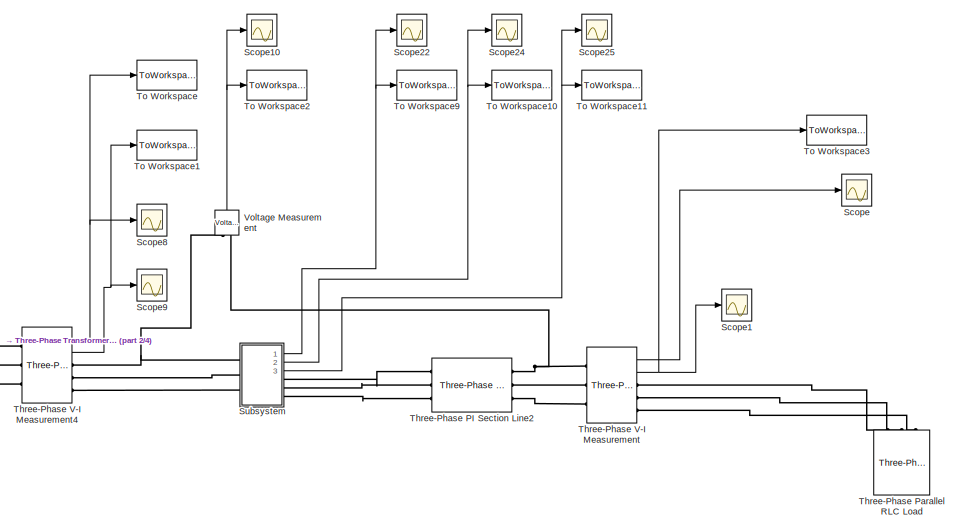
[diagram: root canvas - part 1/4, top right region]
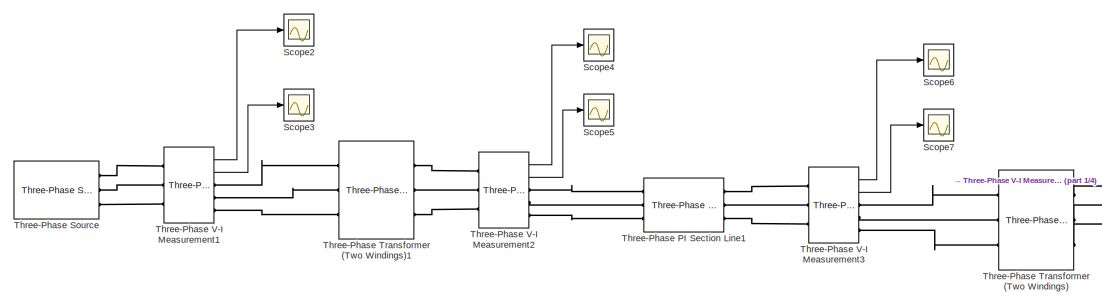
[diagram: root canvas - part 2/4, top left region]
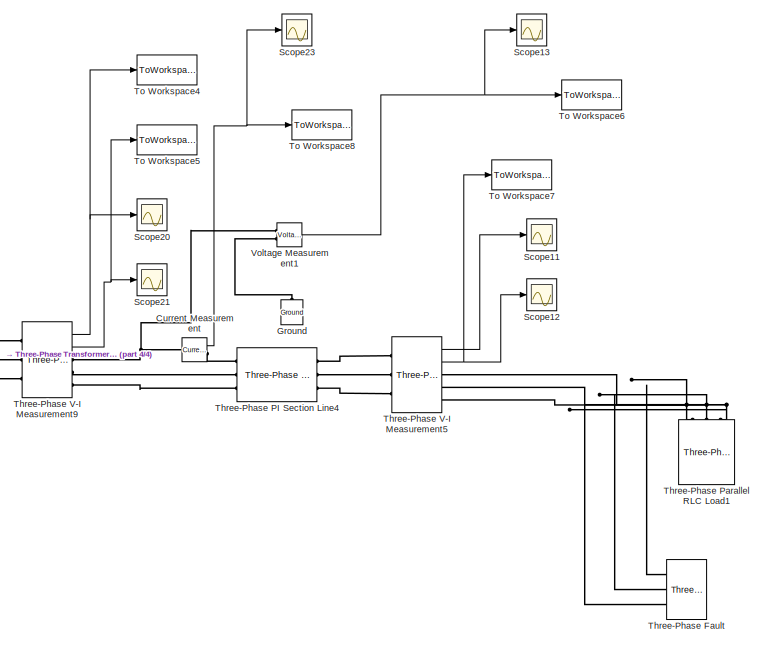
[diagram: root canvas - part 3/4, bottom right region]
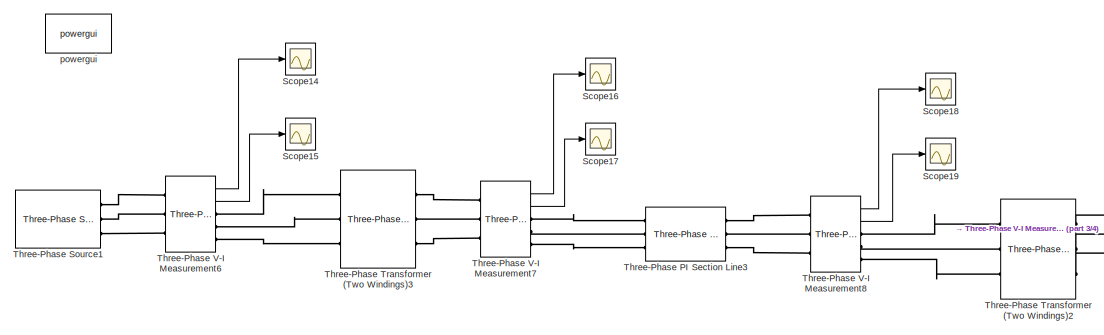
[diagram: root canvas - part 4/4, bottom left region]
MODEL slx_69a28de0aadc
KIND model
BLOCK [Reference] Current Measurement  REF=powerlib/Measurements/Current Measurement
  OutputType = Complex
  PSBequivalent = 0
  PhasorSimulation = off
  Ports = [0, 1, 0, 0, 0, 1, 1]
  SourceBlock = powerlib/Measurements/Current Measurement
  SourceType = Current Measurement
  UserDataPersistent = on
BLOCK [Reference] Ground  REF=powerlib/Elements/Ground
  LConnTagsString = a
  Ports = [0, 0, 0, 0, 0, 1]
  SourceBlock = powerlib/Elements/Ground
  SourceType = Ground
BLOCK [Scope] Scope
  Floating = off
  LimitDataPoints = off
  NumInputPorts = 1
  Ports = [1]
  ShowLegends = off
  YMax = 20000
  YMin = -20000
  ZoomMode = yonly
BLOCK [Scope] Scope1
  Floating = off
  LimitDataPoints = off
  NumInputPorts = 1
  Ports = [1]
  SaveName = ScopeData1
  ShowLegends = off
  YMax = 3500
  YMin = -3000
  ZoomMode = yonly
BLOCK [Scope] Scope10
  Floating = off
  LimitDataPoints = off
  NumInputPorts = 1
  Ports = [1]
  SaveName = ScopeData10
  ShowLegends = off
  YMax = 20000
  YMin = -20000
BLOCK [Scope] Scope11
  Floating = off
  LimitDataPoints = off
  NumInputPorts = 1
  Ports = [1]
  SaveName = ScopeData11
  ShowLegends = off
  YMax = 20000
  YMin = -20000
  ZoomMode = yonly
BLOCK [Scope] Scope12
  Floating = off
  LimitDataPoints = off
  NumInputPorts = 1
  Ports = [1]
  SaveName = ScopeData12
  ShowLegends = off
  YMax = 3500
  YMin = -3000
  ZoomMode = yonly
BLOCK [Scope] Scope13
  Floating = off
  LimitDataPoints = off
  NumInputPorts = 1
  Ports = [1]
  SaveName = ScopeData13
  ShowLegends = off
  YMax = 20000
  YMin = -20000
  ZoomMode = yonly
BLOCK [Scope] Scope14
  Floating = off
  LimitDataPoints = off
  NumInputPorts = 1
  Ports = [1]
  SaveName = ScopeData14
  ShowLegends = off
  YMax = 175000
  YMin = -175000
BLOCK [Scope] Scope15
  Floating = off
  LimitDataPoints = off
  NumInputPorts = 1
  Ports = [1]
  SaveName = ScopeData15
  ShowLegends = off
  YMax = 700
  YMin = -700
  ZoomMode = xonly
BLOCK [Scope] Scope16
  Floating = off
  LimitDataPoints = off
  NumInputPorts = 1
  Ports = [1]
  SaveName = ScopeData16
  ShowLegends = off
  YMax = 20000
  YMin = -20000
BLOCK [Scope] Scope17
  Floating = off
  LimitDataPoints = off
  NumInputPorts = 1
  Ports = [1]
  SaveName = ScopeData17
  ShowLegends = off
  YMax = 20000
  YMin = -20000
  ZoomMode = yonly
BLOCK [Scope] Scope18
  Floating = off
  LimitDataPoints = off
  NumInputPorts = 1
  Ports = [1]
  SaveName = ScopeData18
  ShowLegends = off
  YMax = 20000
  YMin = -20000
BLOCK [Scope] Scope19
  Floating = off
  LimitDataPoints = off
  NumInputPorts = 1
  Ports = [1]
  SaveName = ScopeData19
  ShowLegends = off
  YMax = 900
  YMin = -900
  ZoomMode = yonly
BLOCK [Scope] Scope2
  Floating = off
  LimitDataPoints = off
  NumInputPorts = 1
  Ports = [1]
  SaveName = ScopeData2
  ShowLegends = off
  YMax = 175000
  YMin = -175000
BLOCK [Scope] Scope20
  Floating = off
  LimitDataPoints = off
  NumInputPorts = 1
  Ports = [1]
  SaveName = ScopeData20
  ShowLegends = off
  YMax = 20000
  YMin = -20000
BLOCK [Scope] Scope21
  Floating = off
  LimitDataPoints = off
  NumInputPorts = 1
  Ports = [1]
  SaveName = ScopeData21
  ShowLegends = off
  YMax = 20000
  YMin = -20000
BLOCK [Scope] Scope22
  Floating = off
  LimitDataPoints = off
  NumInputPorts = 1
  Ports = [1]
  SaveName = ScopeData22
  ShowLegends = off
  YMax = 20000
  YMin = -20000
BLOCK [Scope] Scope23
  Floating = off
  LimitDataPoints = off
  NumInputPorts = 1
  Ports = [1]
  SaveName = ScopeData23
  ShowLegends = off
  YMax = 20000
  YMin = -20000
  ZoomMode = yonly
BLOCK [Scope] Scope24
  Floating = off
  LimitDataPoints = off
  NumInputPorts = 1
  Ports = [1]
  SaveName = ScopeData24
  ShowLegends = off
  YMax = 20000
  YMin = -20000
BLOCK [Scope] Scope25
  Floating = off
  LimitDataPoints = off
  NumInputPorts = 1
  Ports = [1]
  SaveName = ScopeData25
  ShowLegends = off
  YMax = 20000
  YMin = -20000
BLOCK [Scope] Scope3
  Floating = off
  LimitDataPoints = off
  NumInputPorts = 1
  Ports = [1]
  SaveName = ScopeData3
  ShowLegends = off
  YMax = 700
  YMin = -700
  ZoomMode = xonly
BLOCK [Scope] Scope4
  Floating = off
  LimitDataPoints = off
  NumInputPorts = 1
  Ports = [1]
  SaveName = ScopeData4
  ShowLegends = off
  YMax = 20000
  YMin = -20000
BLOCK [Scope] Scope5
  Floating = off
  LimitDataPoints = off
  NumInputPorts = 1
  Ports = [1]
  SaveName = ScopeData5
  ShowLegends = off
  YMax = 20000
  YMin = -20000
  ZoomMode = yonly
BLOCK [Scope] Scope6
  Floating = off
  LimitDataPoints = off
  NumInputPorts = 1
  Ports = [1]
  SaveName = ScopeData6
  ShowLegends = off
  YMax = 20000
  YMin = -20000
BLOCK [Scope] Scope7
  Floating = off
  LimitDataPoints = off
  NumInputPorts = 1
  Ports = [1]
  SaveName = ScopeData7
  ShowLegends = off
  YMax = 900
  YMin = -900
  ZoomMode = yonly
BLOCK [Scope] Scope8
  Floating = off
  LimitDataPoints = off
  NumInputPorts = 1
  Ports = [1]
  SaveName = ScopeData8
  ShowLegends = off
  YMax = 20000
  YMin = -20000
BLOCK [Scope] Scope9
  Floating = off
  LimitDataPoints = off
  NumInputPorts = 1
  Ports = [1]
  SaveName = ScopeData9
  ShowLegends = off
  YMax = 20000
  YMin = -20000
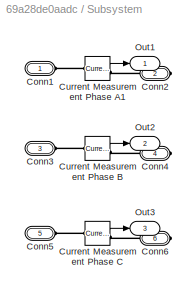
BLOCK [SubSystem] Subsystem
  FunctionWithSeparateData = off
  MaskHideContents = off
  MinAlgLoopOccurrences = off
  Opaque = off
  Ports = [0, 3, 0, 0, 0, 3, 3]
  PropExecContextOutsideSubsystem = off
  RTWSystemCode = Auto
  RequestExecContextInheritance = off
BLOCK [PMIOPort] Subsystem/Conn1
  Port = 1
  Side = Left
BLOCK [PMIOPort] Subsystem/Conn2
  Port = 2
  Side = Right
BLOCK [PMIOPort] Subsystem/Conn3
  Port = 3
  Side = Left
BLOCK [PMIOPort] Subsystem/Conn4
  Port = 4
  Side = Right
BLOCK [PMIOPort] Subsystem/Conn5
  Port = 5
  Side = Left
BLOCK [PMIOPort] Subsystem/Conn6
  Port = 6
  Side = Right
BLOCK [Reference] Subsystem/Current Measurement Phase A1  REF=powerlib/Measurements/Current Measurement
  OutputType = Complex
  PSBequivalent = 0
  PhasorSimulation = off
  Ports = [0, 1, 0, 0, 0, 1, 1]
  SourceBlock = powerlib/Measurements/Current Measurement
  SourceType = Current Measurement
  UserDataPersistent = on
BLOCK [Reference] Subsystem/Current Measurement Phase B  REF=powerlib/Measurements/Current Measurement
  OutputType = Complex
  PSBequivalent = 0
  PhasorSimulation = off
  Ports = [0, 1, 0, 0, 0, 1, 1]
  SourceBlock = powerlib/Measurements/Current Measurement
  SourceType = Current Measurement
  UserDataPersistent = on
BLOCK [Reference] Subsystem/Current Measurement Phase C  REF=powerlib/Measurements/Current Measurement
  OutputType = Complex
  PSBequivalent = 0
  PhasorSimulation = off
  Ports = [0, 1, 0, 0, 0, 1, 1]
  SourceBlock = powerlib/Measurements/Current Measurement
  SourceType = Current Measurement
  UserDataPersistent = on
BLOCK [Outport] Subsystem/Out1
  IconDisplay = Port number
BLOCK [Outport] Subsystem/Out2
  IconDisplay = Port number
  Port = 2
BLOCK [Outport] Subsystem/Out3
  IconDisplay = Port number
  Port = 3
BLOCK [Reference] Three-Phase Fault  REF=powerlib/Elements/Three-Phase Fault
  External = off
  FaultA = on
  FaultB = off
  FaultC = off
  FaultResistance = 0.001
  GroundFault = on
  GroundResistance = 6.94
  InitialStates = [0 0 1]
  Measurements = Fault currents
  Ports = [0, 0, 0, 0, 0, 3]
  SnubberCapacitance = inf
  SnubberResistance = 1e6
  SourceBlock = powerlib/Elements/Three-Phase Fault
  SourceType = Three-Phase Fault
  SwitchStatus = [1 0]
  SwitchTimes = [0.05  0.15]
BLOCK [Reference] Three-Phase PI Section Line1  REF=powerlib/Elements/Three-Phase
PI Section Line
  AttributesFormatString = \n
  Capacitances = [0.00825e-6 0.00588e-6]
  Frequency = 60
  Inductances = [ 1.3743e-3  4.2583e-3]
  LConnTagsString = a|b|c
  Length = 9
  Ports = [0, 0, 0, 0, 0, 3, 3]
  RConnTagsString = A|B|C
  Resistances = [ 0.41586 0.82784]
  SourceBlock = powerlib/Elements/Three-Phase\nPI Section Line
  SourceType = Three-Phase PI Section Line
BLOCK [Reference] Three-Phase PI Section Line2  REF=powerlib/Elements/Three-Phase
PI Section Line
  AttributesFormatString = \n
  Capacitances = [0.00825e-6 0.00588e-6]
  Frequency = 60
  Inductances = [ 1.3743e-3  4.2583e-3]
  LConnTagsString = a|b|c
  Length = 3
  Ports = [0, 0, 0, 0, 0, 3, 3]
  RConnTagsString = A|B|C
  Resistances = [ 0.41586 0.82784]
  SourceBlock = powerlib/Elements/Three-Phase\nPI Section Line
  SourceType = Three-Phase PI Section Line
BLOCK [Reference] Three-Phase PI Section Line3  REF=powerlib/Elements/Three-Phase
PI Section Line
  AttributesFormatString = \n
  Capacitances = [0.00825e-6 0.00588e-6]
  Frequency = 60
  Inductances = [ 1.3743e-3  4.2583e-3]
  LConnTagsString = a|b|c
  Length = 10
  Ports = [0, 0, 0, 0, 0, 3, 3]
  RConnTagsString = A|B|C
  Resistances = [ 0.41586 0.82784]
  SourceBlock = powerlib/Elements/Three-Phase\nPI Section Line
  SourceType = Three-Phase PI Section Line
BLOCK [Reference] Three-Phase PI Section Line4  REF=powerlib/Elements/Three-Phase
PI Section Line
  AttributesFormatString = \n
  Capacitances = [0.00825e-6 0.00588e-6]
  Frequency = 60
  Inductances = [ 1.3743e-3  4.2583e-3]
  LConnTagsString = a|b|c
  Length = 0.26386
  Ports = [0, 0, 0, 0, 0, 3, 3]
  RConnTagsString = A|B|C
  Resistances = [ 0.41586 0.82784]
  SourceBlock = powerlib/Elements/Three-Phase\nPI Section Line
  SourceType = Three-Phase PI Section Line
BLOCK [Reference] Three-Phase Parallel RLC Load  REF=powerlib/Elements/Three-Phase
Parallel RLC Load
  ActivePower = 13800
  AttributesFormatString = \n
  CapacitivePower = 0
  Configuration = Y (grounded)
  InductivePower = 0
  LConnTagsString = A|B|C
  LoadType = constant Z
  Measurements = None
  NominalFrequency = 60
  NominalVoltage = 13800
  Ports = [0, 0, 0, 0, 0, 3]
  SourceBlock = powerlib/Elements/Three-Phase\nParallel RLC Load
  SourceType = Three-Phase Parallel RLC Load
BLOCK [Reference] Three-Phase Parallel RLC Load1  REF=powerlib/Elements/Three-Phase
Parallel RLC Load
  ActivePower = 13800
  AttributesFormatString = \n
  CapacitivePower = 0
  Configuration = Y (grounded)
  InductivePower = 0
  LConnTagsString = A|B|C
  LoadType = constant Z
  Measurements = None
  NominalFrequency = 60
  NominalVoltage = 13800
  Ports = [0, 0, 0, 0, 0, 3]
  SourceBlock = powerlib/Elements/Three-Phase\nParallel RLC Load
  SourceType = Three-Phase Parallel RLC Load
BLOCK [Reference] Three-Phase Source  REF=powerlib/Electrical
Sources/Three-Phase Source
  BaseVoltage = 115000
  BusType = swing
  Frequency = 60
  Inductance = 16.58e-3
  InternalConnection = Yg
  PhaseAngle = 120
  Ports = [0, 0, 0, 0, 0, 0, 3]
  Pref = 0
  Qmax = inf
  Qmin = -inf
  Qref = 0
  Resistance = 0.8929
  ShortCircuitLevel = 100e6
  SourceBlock = powerlib/Electrical\nSources/Three-Phase Source
  SourceType = Three-Phase Source
  SpecifyImpedance = on
  Voltage = 115000
  XRratio = 7
BLOCK [Reference] Three-Phase Source1  REF=powerlib/Electrical
Sources/Three-Phase Source
  BaseVoltage = 115000
  BusType = swing
  Frequency = 60
  Inductance = 16.58e-3
  InternalConnection = Yg
  PhaseAngle = 120
  Ports = [0, 0, 0, 0, 0, 0, 3]
  Pref = 0
  Qmax = inf
  Qmin = -inf
  Qref = 0
  Resistance = 0.8929
  ShortCircuitLevel = 100e6
  SourceBlock = powerlib/Electrical\nSources/Three-Phase Source
  SourceType = Three-Phase Source
  SpecifyImpedance = on
  Voltage = 115000
  XRratio = 7
BLOCK [Reference] Three-Phase Transformer (Two Windings)  REF=powerlib/Elements/Three-Phase
Transformer
(Two Windings)
  BreakLoop = off
  DataFile = 'hysteresis'
  DataType = off
  Hysteresis = off
  InitialFluxes = [ 0.8 , -0.8 , 0.7 ]
  Lm = 500
  Measurements = None
  MoreParameters = off
  NominalPower = [ 5e6 , 60 ]
  Ports = [0, 0, 0, 0, 0, 3, 3]
  Rm = 500
  Saturation = [ 0,0 ; 0.0024,1.2 ; 1.0,1.52 ]
  SetInitialFlux = off
  SetSaturation = off
  SourceBlock = powerlib/Elements/Three-Phase\nTransformer\n(Two Windings)
  SourceType = Three-Phase Transformer (Two Windings)
  TransfoNumber = 1
  UNITS = pu
  Winding1 = [ 34500 , 0 , 0.0273 ]
  Winding1Connection = Yg
  Winding2 = [ 13800 , 0 , 0.0273 ]
  Winding2Connection = Yg
BLOCK [Reference] Three-Phase Transformer (Two Windings)1  REF=powerlib/Elements/Three-Phase
Transformer
(Two Windings)
  BreakLoop = off
  DataFile = 'hysteresis'
  DataType = off
  Hysteresis = off
  InitialFluxes = [ 0.8 , -0.8 , 0.7 ]
  Lm = 500
  Measurements = None
  MoreParameters = off
  NominalPower = [ 40e6 , 60 ]
  Ports = [0, 0, 0, 0, 0, 3, 3]
  Rm = 500
  Saturation = [ 0,0 ; 0.0024,1.2 ; 1.0,1.52 ]
  SetInitialFlux = off
  SetSaturation = off
  SourceBlock = powerlib/Elements/Three-Phase\nTransformer\n(Two Windings)
  SourceType = Three-Phase Transformer (Two Windings)
  TransfoNumber = 1
  UNITS = pu
  Winding1 = [ 115000 , 0 , 0.06 ]
  Winding1Connection = Yg
  Winding2 = [ 34500 , 0 , 0.06 ]
  Winding2Connection = Yg
BLOCK [Reference] Three-Phase Transformer (Two Windings)2  REF=powerlib/Elements/Three-Phase
Transformer
(Two Windings)
  BreakLoop = off
  DataFile = 'hysteresis'
  DataType = off
  Hysteresis = off
  InitialFluxes = [ 0.8 , -0.8 , 0.7 ]
  Lm = 500
  Measurements = None
  MoreParameters = off
  NominalPower = [ 5e6 , 60 ]
  Ports = [0, 0, 0, 0, 0, 3, 3]
  Rm = 500
  Saturation = [ 0,0 ; 0.0024,1.2 ; 1.0,1.52 ]
  SetInitialFlux = off
  SetSaturation = off
  SourceBlock = powerlib/Elements/Three-Phase\nTransformer\n(Two Windings)
  SourceType = Three-Phase Transformer (Two Windings)
  TransfoNumber = 1
  UNITS = pu
  Winding1 = [ 34500 , 0 , 0.0273 ]
  Winding1Connection = Yg
  Winding2 = [ 13800 , 0 , 0.0273 ]
  Winding2Connection = Yg
BLOCK [Reference] Three-Phase Transformer (Two Windings)3  REF=powerlib/Elements/Three-Phase
Transformer
(Two Windings)
  BreakLoop = off
  DataFile = 'hysteresis'
  DataType = off
  Hysteresis = off
  InitialFluxes = [ 0.8 , -0.8 , 0.7 ]
  Lm = 500
  Measurements = None
  MoreParameters = off
  NominalPower = [ 40e6 , 60 ]
  Ports = [0, 0, 0, 0, 0, 3, 3]
  Rm = 500
  Saturation = [ 0,0 ; 0.0024,1.2 ; 1.0,1.52 ]
  SetInitialFlux = off
  SetSaturation = off
  SourceBlock = powerlib/Elements/Three-Phase\nTransformer\n(Two Windings)
  SourceType = Three-Phase Transformer (Two Windings)
  TransfoNumber = 1
  UNITS = pu
  Winding1 = [ 115000 , 0 , 0.06 ]
  Winding1Connection = Yg
  Winding2 = [ 34500 , 0 , 0.06 ]
  Winding2Connection = Yg
BLOCK [Reference] Three-Phase V-I Measurement  REF=powerlib/Measurements/Three-Phase
V-I Measurement
  CurrentMeasurement = yes
  Ipu = off
  LabelI = Iabc
  LabelV = Vabc
  OutputType = Complex
  PSBequivalent = 0
  Pbase = 100e6
  PhasorSimulation = off
  Ports = [0, 2, 0, 0, 0, 3, 3]
  SetLabelI = off
  SetLabelV = off
  SourceBlock = powerlib/Measurements/Three-Phase\nV-I Measurement
  SourceType = Three-Phase VI Measurement
  Vbase = 500e3
  VoltageMeasurement = phase-to-ground
  Vpu = off
  VpuLL = off
BLOCK [Reference] Three-Phase V-I Measurement1  REF=powerlib/Measurements/Three-Phase
V-I Measurement
  CurrentMeasurement = yes
  Ipu = off
  LabelI = Iabc
  LabelV = Vabc
  OutputType = Complex
  PSBequivalent = 0
  Pbase = 100e6
  PhasorSimulation = off
  Ports = [0, 2, 0, 0, 0, 3, 3]
  SetLabelI = off
  SetLabelV = off
  SourceBlock = powerlib/Measurements/Three-Phase\nV-I Measurement
  SourceType = Three-Phase VI Measurement
  Vbase = 500e3
  VoltageMeasurement = phase-to-phase
  Vpu = off
  VpuLL = off
BLOCK [Reference] Three-Phase V-I Measurement2  REF=powerlib/Measurements/Three-Phase
V-I Measurement
  CurrentMeasurement = yes
  Ipu = off
  LabelI = Iabc
  LabelV = Vabc
  OutputType = Complex
  PSBequivalent = 0
  Pbase = 100e6
  PhasorSimulation = off
  Ports = [0, 2, 0, 0, 0, 3, 3]
  SetLabelI = off
  SetLabelV = off
  SourceBlock = powerlib/Measurements/Three-Phase\nV-I Measurement
  SourceType = Three-Phase VI Measurement
  Vbase = 500e3
  VoltageMeasurement = phase-to-phase
  Vpu = off
  VpuLL = off
BLOCK [Reference] Three-Phase V-I Measurement3  REF=powerlib/Measurements/Three-Phase
V-I Measurement
  CurrentMeasurement = yes
  Ipu = off
  LabelI = Iabc
  LabelV = Vabc
  OutputType = Complex
  PSBequivalent = 0
  Pbase = 100e6
  PhasorSimulation = off
  Ports = [0, 2, 0, 0, 0, 3, 3]
  SetLabelI = off
  SetLabelV = off
  SourceBlock = powerlib/Measurements/Three-Phase\nV-I Measurement
  SourceType = Three-Phase VI Measurement
  Vbase = 500e3
  VoltageMeasurement = phase-to-phase
  Vpu = off
  VpuLL = off
BLOCK [Reference] Three-Phase V-I Measurement4  REF=powerlib/Measurements/Three-Phase
V-I Measurement
  CurrentMeasurement = yes
  Ipu = off
  LabelI = Iabc
  LabelV = Vabc
  OutputType = Complex
  PSBequivalent = 0
  Pbase = 100e6
  PhasorSimulation = off
  Ports = [0, 2, 0, 0, 0, 3, 3]
  SetLabelI = off
  SetLabelV = off
  SourceBlock = powerlib/Measurements/Three-Phase\nV-I Measurement
  SourceType = Three-Phase VI Measurement
  Vbase = 500e3
  VoltageMeasurement = phase-to-ground
  Vpu = off
  VpuLL = off
BLOCK [Reference] Three-Phase V-I Measurement5  REF=powerlib/Measurements/Three-Phase
V-I Measurement
  CurrentMeasurement = yes
  Ipu = off
  LabelI = Iabc
  LabelV = Vabc
  OutputType = Complex
  PSBequivalent = 0
  Pbase = 100e6
  PhasorSimulation = off
  Ports = [0, 2, 0, 0, 0, 3, 3]
  SetLabelI = off
  SetLabelV = off
  SourceBlock = powerlib/Measurements/Three-Phase\nV-I Measurement
  SourceType = Three-Phase VI Measurement
  Vbase = 500e3
  VoltageMeasurement = phase-to-ground
  Vpu = off
  VpuLL = off
BLOCK [Reference] Three-Phase V-I Measurement6  REF=powerlib/Measurements/Three-Phase
V-I Measurement
  CurrentMeasurement = yes
  Ipu = off
  LabelI = Iabc
  LabelV = Vabc
  OutputType = Complex
  PSBequivalent = 0
  Pbase = 100e6
  PhasorSimulation = off
  Ports = [0, 2, 0, 0, 0, 3, 3]
  SetLabelI = off
  SetLabelV = off
  SourceBlock = powerlib/Measurements/Three-Phase\nV-I Measurement
  SourceType = Three-Phase VI Measurement
  Vbase = 500e3
  VoltageMeasurement = phase-to-phase
  Vpu = off
  VpuLL = off
BLOCK [Reference] Three-Phase V-I Measurement7  REF=powerlib/Measurements/Three-Phase
V-I Measurement
  CurrentMeasurement = yes
  Ipu = off
  LabelI = Iabc
  LabelV = Vabc
  OutputType = Complex
  PSBequivalent = 0
  Pbase = 100e6
  PhasorSimulation = off
  Ports = [0, 2, 0, 0, 0, 3, 3]
  SetLabelI = off
  SetLabelV = off
  SourceBlock = powerlib/Measurements/Three-Phase\nV-I Measurement
  SourceType = Three-Phase VI Measurement
  Vbase = 500e3
  VoltageMeasurement = phase-to-phase
  Vpu = off
  VpuLL = off
BLOCK [Reference] Three-Phase V-I Measurement8  REF=powerlib/Measurements/Three-Phase
V-I Measurement
  CurrentMeasurement = yes
  Ipu = off
  LabelI = Iabc
  LabelV = Vabc
  OutputType = Complex
  PSBequivalent = 0
  Pbase = 100e6
  PhasorSimulation = off
  Ports = [0, 2, 0, 0, 0, 3, 3]
  SetLabelI = off
  SetLabelV = off
  SourceBlock = powerlib/Measurements/Three-Phase\nV-I Measurement
  SourceType = Three-Phase VI Measurement
  Vbase = 500e3
  VoltageMeasurement = phase-to-phase
  Vpu = off
  VpuLL = off
BLOCK [Reference] Three-Phase V-I Measurement9  REF=powerlib/Measurements/Three-Phase
V-I Measurement
  CurrentMeasurement = yes
  Ipu = off
  LabelI = Iabc
  LabelV = Vabc
  OutputType = Complex
  PSBequivalent = 0
  Pbase = 100e6
  PhasorSimulation = off
  Ports = [0, 2, 0, 0, 0, 3, 3]
  SetLabelI = off
  SetLabelV = off
  SourceBlock = powerlib/Measurements/Three-Phase\nV-I Measurement
  SourceType = Three-Phase VI Measurement
  Vbase = 500e3
  VoltageMeasurement = phase-to-ground
  Vpu = off
  VpuLL = off
BLOCK [ToWorkspace] To Workspace
  FixptAsFi = on
  MaxDataPoints = inf
  Ports = [1]
  SampleTime = -1
  VariableName = V1
BLOCK [ToWorkspace] To Workspace1
  FixptAsFi = on
  MaxDataPoints = inf
  Ports = [1]
  SampleTime = -1
  VariableName = I
BLOCK [ToWorkspace] To Workspace10
  FixptAsFi = on
  MaxDataPoints = inf
  Ports = [1]
  SampleTime = -1
  VariableName = Ipb
BLOCK [ToWorkspace] To Workspace11
  FixptAsFi = on
  MaxDataPoints = inf
  Ports = [1]
  SampleTime = -1
  VariableName = Ipc
BLOCK [ToWorkspace] To Workspace2
  FixptAsFi = on
  MaxDataPoints = inf
  Ports = [1]
  SampleTime = -1
  VariableName = V
BLOCK [ToWorkspace] To Workspace3
  FixptAsFi = on
  MaxDataPoints = inf
  Ports = [1]
  SampleTime = -1
  VariableName = I1
BLOCK [ToWorkspace] To Workspace4
  FixptAsFi = on
  MaxDataPoints = inf
  Ports = [1]
  SampleTime = -1
  VariableName = V2
BLOCK [ToWorkspace] To Workspace5
  FixptAsFi = on
  MaxDataPoints = inf
  Ports = [1]
  SampleTime = -1
  VariableName = I2
BLOCK [ToWorkspace] To Workspace6
  FixptAsFi = on
  MaxDataPoints = inf
  Ports = [1]
  SampleTime = -1
  VariableName = V3
BLOCK [ToWorkspace] To Workspace7
  FixptAsFi = on
  MaxDataPoints = inf
  Ports = [1]
  SampleTime = -1
  SaveFormat = Structure With Time
  VariableName = I3
BLOCK [ToWorkspace] To Workspace8
  FixptAsFi = on
  MaxDataPoints = inf
  Ports = [1]
  SampleTime = -1
  VariableName = Is
BLOCK [ToWorkspace] To Workspace9
  FixptAsFi = on
  MaxDataPoints = inf
  Ports = [1]
  SampleTime = -1
  VariableName = Ipa
BLOCK [Reference] Voltage Measurement  REF=powerlib/Measurements/Voltage Measurement
  OutputType = Complex
  PSBequivalent = 0
  PhasorSimulation = off
  Ports = [0, 1, 0, 0, 0, 2]
  SourceBlock = powerlib/Measurements/Voltage Measurement
  SourceType = Voltage Measurement
  UserDataPersistent = on
BLOCK [Reference] Voltage Measurement1  REF=powerlib/Measurements/Voltage Measurement
  OutputType = Complex
  PSBequivalent = 0
  PhasorSimulation = off
  Ports = [0, 1, 0, 0, 0, 2]
  SourceBlock = powerlib/Measurements/Voltage Measurement
  SourceType = Voltage Measurement
  UserDataPersistent = on
BLOCK [Reference] powergui  REF=powerlib/powergui
  DisableRonSwitches = off
  DisableSnubberDevices = off
  DisableVfSwitches = off
  DisplayEquations = off
  DisplayStyle = 1
  EnableUseOfTLC = off
  ErrMax = 1e-4
  Frange = [0:2:500]
  FreqAxis = off
  FunctionMessages = off
  HookPort = off
  Interpol = off
  Iterations = 50
  MaxFrequency = 1000
  Pbase = 100e6
  Ports = []
  Priority = 1
  ResistiveCurrentMeasurement = off
  RestoreLinks = warning
  RmsSteady = 1
  SPID = off
  SampleTime = 5.208333e-4
  ShowGrid = off
  SolverType = Tustin
  SourceBlock = powerlib/powergui
  SourceType = PSB option menu block
  StartTime = 0.0
  SwTol = 0
  Ts = 0
  UnitsV = kV
  UnitsW = MW
  UserDataPersistent = on
  Xlog = on
  Ylog = off
  ZoomFFT = off
  cycles = 1
  display = off
  echomessages = off
  frequency = 60
  frequencyindice = 60
  frequencyindicesteady = 1
  fundamental = 60
  methode = off
  save = off
  structure = 0
  variable = ZData
  x0status = blocks
NET Current Measurement:1 -> Scope23:1, To Workspace8:1
LINE Subsystem/Current Measurement Phase A1:1 -> Subsystem/Out1:1
LINE Subsystem/Current Measurement Phase B:1 -> Subsystem/Out2:1
LINE Subsystem/Current Measurement Phase C:1 -> Subsystem/Out3:1
NET Subsystem:1 -> Scope22:1, To Workspace9:1
NET Subsystem:2 -> Scope24:1, To Workspace10:1
NET Subsystem:3 -> Scope25:1, To Workspace11:1
LINE Three-Phase V-I Measurement1:1 -> Scope2:1
LINE Three-Phase V-I Measurement1:2 -> Scope3:1
LINE Three-Phase V-I Measurement2:1 -> Scope4:1
LINE Three-Phase V-I Measurement2:2 -> Scope5:1
LINE Three-Phase V-I Measurement3:1 -> Scope6:1
LINE Three-Phase V-I Measurement3:2 -> Scope7:1
NET Three-Phase V-I Measurement4:1 -> Scope8:1, To Workspace:1
NET Three-Phase V-I Measurement4:2 -> Scope9:1, To Workspace1:1
LINE Three-Phase V-I Measurement5:1 -> Scope11:1
NET Three-Phase V-I Measurement5:2 -> Scope12:1, To Workspace7:1
LINE Three-Phase V-I Measurement6:1 -> Scope14:1
LINE Three-Phase V-I Measurement6:2 -> Scope15:1
LINE Three-Phase V-I Measurement7:1 -> Scope16:1
LINE Three-Phase V-I Measurement7:2 -> Scope17:1
LINE Three-Phase V-I Measurement8:1 -> Scope18:1
LINE Three-Phase V-I Measurement8:2 -> Scope19:1
NET Three-Phase V-I Measurement9:1 -> Scope20:1, To Workspace4:1
NET Three-Phase V-I Measurement9:2 -> Scope21:1, To Workspace5:1
LINE Three-Phase V-I Measurement:1 -> Scope:1
NET Three-Phase V-I Measurement:2 -> Scope1:1, To Workspace3:1
NET Voltage Measurement1:1 -> Scope13:1, To Workspace6:1
NET Voltage Measurement:1 -> Scope10:1, To Workspace2:1
PNET net1: Current Measurement:LConn1 -- Three-Phase V-I Measurement9:RConn1 -- Voltage Measurement1:LConn1
PLINE Current Measurement:RConn1 -- Three-Phase PI Section Line4:LConn1
PLINE Ground:LConn1 -- Voltage Measurement1:LConn2
PLINE Subsystem/Conn1:RConn1 -- Subsystem/Current Measurement Phase A1:LConn1
PLINE Subsystem/Conn2:RConn1 -- Subsystem/Current Measurement Phase A1:RConn1
PLINE Subsystem/Conn3:RConn1 -- Subsystem/Current Measurement Phase B:LConn1
PLINE Subsystem/Conn4:RConn1 -- Subsystem/Current Measurement Phase B:RConn1
PLINE Subsystem/Conn5:RConn1 -- Subsystem/Current Measurement Phase C:LConn1
PLINE Subsystem/Conn6:RConn1 -- Subsystem/Current Measurement Phase C:RConn1
PNET net2: Subsystem:LConn1 -- Three-Phase V-I Measurement4:RConn1 -- Voltage Measurement:LConn1
PLINE Subsystem:LConn2 -- Three-Phase V-I Measurement4:RConn2
PLINE Subsystem:LConn3 -- Three-Phase V-I Measurement4:RConn3
PLINE Subsystem:RConn1 -- Three-Phase PI Section Line2:LConn1
PLINE Subsystem:RConn2 -- Three-Phase PI Section Line2:LConn2
PLINE Subsystem:RConn3 -- Three-Phase PI Section Line2:LConn3
PNET net3: Three-Phase Fault:LConn1 -- Three-Phase Parallel RLC Load1:LConn1 -- Three-Phase V-I Measurement5:RConn1
PNET net4: Three-Phase Fault:LConn2 -- Three-Phase Parallel RLC Load1:LConn2 -- Three-Phase V-I Measurement5:RConn2
PNET net5: Three-Phase Fault:LConn3 -- Three-Phase Parallel RLC Load1:LConn3 -- Three-Phase V-I Measurement5:RConn3
PLINE Three-Phase PI Section Line1:LConn1 -- Three-Phase V-I Measurement2:RConn1
PLINE Three-Phase PI Section Line1:LConn2 -- Three-Phase V-I Measurement2:RConn2
PLINE Three-Phase PI Section Line1:LConn3 -- Three-Phase V-I Measurement2:RConn3
PLINE Three-Phase PI Section Line1:RConn1 -- Three-Phase V-I Measurement3:LConn1
PLINE Three-Phase PI Section Line1:RConn2 -- Three-Phase V-I Measurement3:LConn2
PLINE Three-Phase PI Section Line1:RConn3 -- Three-Phase V-I Measurement3:LConn3
PNET net6: Three-Phase PI Section Line2:RConn1 -- Three-Phase V-I Measurement:LConn1 -- Voltage Measurement:LConn2
PLINE Three-Phase PI Section Line2:RConn2 -- Three-Phase V-I Measurement:LConn2
PLINE Three-Phase PI Section Line2:RConn3 -- Three-Phase V-I Measurement:LConn3
PLINE Three-Phase PI Section Line3:LConn1 -- Three-Phase V-I Measurement7:RConn1
PLINE Three-Phase PI Section Line3:LConn2 -- Three-Phase V-I Measurement7:RConn2
PLINE Three-Phase PI Section Line3:LConn3 -- Three-Phase V-I Measurement7:RConn3
PLINE Three-Phase PI Section Line3:RConn1 -- Three-Phase V-I Measurement8:LConn1
PLINE Three-Phase PI Section Line3:RConn2 -- Three-Phase V-I Measurement8:LConn2
PLINE Three-Phase PI Section Line3:RConn3 -- Three-Phase V-I Measurement8:LConn3
PLINE Three-Phase PI Section Line4:LConn2 -- Three-Phase V-I Measurement9:RConn2
PLINE Three-Phase PI Section Line4:LConn3 -- Three-Phase V-I Measurement9:RConn3
PLINE Three-Phase PI Section Line4:RConn1 -- Three-Phase V-I Measurement5:LConn1
PLINE Three-Phase PI Section Line4:RConn2 -- Three-Phase V-I Measurement5:LConn2
PLINE Three-Phase PI Section Line4:RConn3 -- Three-Phase V-I Measurement5:LConn3
PLINE Three-Phase Parallel RLC Load:LConn1 -- Three-Phase V-I Measurement:RConn1
PLINE Three-Phase Parallel RLC Load:LConn2 -- Three-Phase V-I Measurement:RConn2
PLINE Three-Phase Parallel RLC Load:LConn3 -- Three-Phase V-I Measurement:RConn3
PLINE Three-Phase Source1:RConn1 -- Three-Phase V-I Measurement6:LConn1
PLINE Three-Phase Source1:RConn2 -- Three-Phase V-I Measurement6:LConn2
PLINE Three-Phase Source1:RConn3 -- Three-Phase V-I Measurement6:LConn3
PLINE Three-Phase Source:RConn1 -- Three-Phase V-I Measurement1:LConn1
PLINE Three-Phase Source:RConn2 -- Three-Phase V-I Measurement1:LConn2
PLINE Three-Phase Source:RConn3 -- Three-Phase V-I Measurement1:LConn3
PLINE Three-Phase Transformer (Two Windings)1:LConn1 -- Three-Phase V-I Measurement1:RConn1
PLINE Three-Phase Transformer (Two Windings)1:LConn2 -- Three-Phase V-I Measurement1:RConn2
PLINE Three-Phase Transformer (Two Windings)1:LConn3 -- Three-Phase V-I Measurement1:RConn3
PLINE Three-Phase Transformer (Two Windings)1:RConn1 -- Three-Phase V-I Measurement2:LConn1
PLINE Three-Phase Transformer (Two Windings)1:RConn2 -- Three-Phase V-I Measurement2:LConn2
PLINE Three-Phase Transformer (Two Windings)1:RConn3 -- Three-Phase V-I Measurement2:LConn3
PLINE Three-Phase Transformer (Two Windings)2:LConn1 -- Three-Phase V-I Measurement8:RConn1
PLINE Three-Phase Transformer (Two Windings)2:LConn2 -- Three-Phase V-I Measurement8:RConn2
PLINE Three-Phase Transformer (Two Windings)2:LConn3 -- Three-Phase V-I Measurement8:RConn3
PLINE Three-Phase Transformer (Two Windings)2:RConn1 -- Three-Phase V-I Measurement9:LConn1
PLINE Three-Phase Transformer (Two Windings)2:RConn2 -- Three-Phase V-I Measurement9:LConn2
PLINE Three-Phase Transformer (Two Windings)2:RConn3 -- Three-Phase V-I Measurement9:LConn3
PLINE Three-Phase Transformer (Two Windings)3:LConn1 -- Three-Phase V-I Measurement6:RConn1
PLINE Three-Phase Transformer (Two Windings)3:LConn2 -- Three-Phase V-I Measurement6:RConn2
PLINE Three-Phase Transformer (Two Windings)3:LConn3 -- Three-Phase V-I Measurement6:RConn3
PLINE Three-Phase Transformer (Two Windings)3:RConn1 -- Three-Phase V-I Measurement7:LConn1
PLINE Three-Phase Transformer (Two Windings)3:RConn2 -- Three-Phase V-I Measurement7:LConn2
PLINE Three-Phase Transformer (Two Windings)3:RConn3 -- Three-Phase V-I Measurement7:LConn3
PLINE Three-Phase Transformer (Two Windings):LConn1 -- Three-Phase V-I Measurement3:RConn1
PLINE Three-Phase Transformer (Two Windings):LConn2 -- Three-Phase V-I Measurement3:RConn2
PLINE Three-Phase Transformer (Two Windings):LConn3 -- Three-Phase V-I Measurement3:RConn3
PLINE Three-Phase Transformer (Two Windings):RConn1 -- Three-Phase V-I Measurement4:LConn1
PLINE Three-Phase Transformer (Two Windings):RConn2 -- Three-Phase V-I Measurement4:LConn2
PLINE Three-Phase Transformer (Two Windings):RConn3 -- Three-Phase V-I Measurement4:LConn3
note: NET lines group one-source signal fan-out (src -> all destinations, sorted); 1:1 wires keep LINE; PNET lines group multi-terminal physical nets as a canonical sorted terminal list (undirected conserving connections); 2-terminal nets keep the pairwise PLINE form
